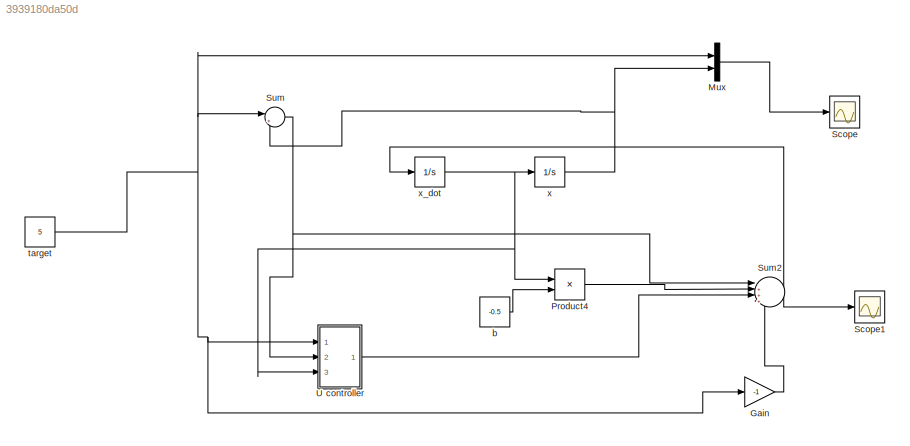
MODEL slx_3939180da50d
KIND model
CONFIG AbsTol = auto
CONFIG EnableMultiTasking = off
CONFIG FixedStep = auto
CONFIG MaxStep = auto
CONFIG MinStep = auto
CONFIG RelTol = 1e-3
CONFIG SampleTimeConstraint = Unconstrained
CONFIG Solver = VariableStepAuto
CONFIG SolverName = VariableStepAuto
CONFIG StartTime = 0.0
CONFIG StopTime = 100
BLOCK [Gain] Gain
  Gain = -1
  OutDataTypeStr = Inherit: Inherit via internal rule
  ParamDataTypeStr = Inherit: Inherit via internal rule
  SaturateOnIntegerOverflow = off
BLOCK [Mux] Mux
  DisplayOption = bar
  Inputs = 2
  Ports = [2, 1]
BLOCK [Product] Product4
  InputSameDT = off
  OutDataTypeStr = Inherit: Inherit via internal rule
  Ports = [2, 1]
  RndMeth = Floor
  SaturateOnIntegerOverflow = off
BLOCK [Scope] Scope
  Floating = off
  NumInputPorts = 1
  Ports = [1]
  ScopeSpecificationString = Simulink.scopes.TimeScopeBlockCfg('CurrentConfiguration', extmgr.ConfigurationSet(extmgr.Configuration('Core','General UI',true),extmgr.Configuration('Core','Source UI',true),extmgr.Configuration('Sources','WiredSimulink',true),extmgr.Configuration('Visuals','Time Domain',true,'SerializedDisplays',{struct('MinYLimReal','-0.89541','MaxYLimReal','8.05871','YLabelReal','','MinYLimMag','0.00000','MaxY...<+1355ch>
BLOCK [Scope] Scope1
  Floating = off
  NumInputPorts = 1
  Ports = [1]
  ScopeSpecificationString = Simulink.scopes.TimeScopeBlockCfg('CurrentConfiguration', extmgr.ConfigurationSet(extmgr.Configuration('Core','General UI',true),extmgr.Configuration('Core','Source UI',true),extmgr.Configuration('Sources','WiredSimulink',true,'DataLoggingVariableName','ScopeData1'),extmgr.Configuration('Visuals','Time Domain',true,'SerializedDisplays',{struct('MinYLimReal','-3.47149','MaxYLimReal','5.94128','YLab...<+1390ch>
BLOCK [Sum] Sum
  IconShape = round
  InputSameDT = off
  Inputs = |+-
  OutDataTypeStr = Inherit: Inherit via internal rule
  Ports = [2, 1]
  SaturateOnIntegerOverflow = off
BLOCK [Sum] Sum2
  IconShape = round
  InputSameDT = off
  Inputs = |++++
  OutDataTypeStr = Inherit: Inherit via internal rule
  Ports = [4, 1]
  SaturateOnIntegerOverflow = off
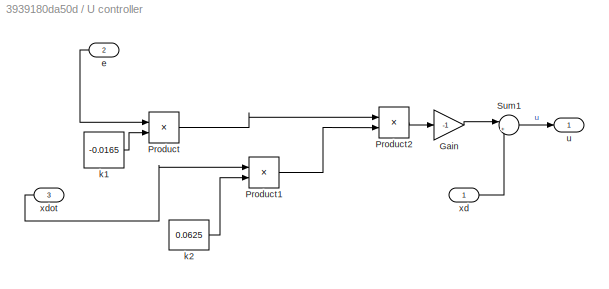
BLOCK [SubSystem] U controller
  Ports = [3, 1]
  RequestExecContextInheritance = off
BLOCK [Gain] U controller/Gain
  Gain = -1
  OutDataTypeStr = Inherit: Inherit via internal rule
  ParamDataTypeStr = Inherit: Inherit via internal rule
  SaturateOnIntegerOverflow = off
BLOCK [Product] U controller/Product
  InputSameDT = off
  OutDataTypeStr = Inherit: Inherit via internal rule
  Ports = [2, 1]
  RndMeth = Floor
  SaturateOnIntegerOverflow = off
BLOCK [Product] U controller/Product1
  InputSameDT = off
  OutDataTypeStr = Inherit: Inherit via internal rule
  Ports = [2, 1]
  RndMeth = Floor
  SaturateOnIntegerOverflow = off
BLOCK [Product] U controller/Product2
  InputSameDT = off
  OutDataTypeStr = Inherit: Inherit via internal rule
  Ports = [2, 1]
  RndMeth = Floor
  SaturateOnIntegerOverflow = off
BLOCK [Sum] U controller/Sum1
  IconShape = round
  InputSameDT = off
  Inputs = |++
  OutDataTypeStr = Inherit: Inherit via internal rule
  Ports = [2, 1]
  SaturateOnIntegerOverflow = off
BLOCK [Inport] U controller/e
  IconDisplay = Port number
  Port = 2
BLOCK [Constant] U controller/k1
  Value = -0.0165
BLOCK [Constant] U controller/k2
  Value = 0.0625
BLOCK [Outport] U controller/u
  IconDisplay = Port number
BLOCK [Inport] U controller/xd
  IconDisplay = Port number
BLOCK [Inport] U controller/xdot
  IconDisplay = Port number
  Port = 3
BLOCK [Constant] b
  Value = -0.5
BLOCK [Constant] target
  Value = 5
BLOCK [Integrator] x
  Ports = [1, 1]
BLOCK [Integrator] x_dot
  Ports = [1, 1]
LINE Gain:1 -> Sum2:4
LINE Mux:1 -> Scope:1
LINE Product4:1 -> Sum2:2
NET Sum2:1 -> Scope1:1, x_dot:1
NET Sum:1 -> Sum2:1, U controller:2
LINE U controller/Gain:1 -> U controller/Sum1:1
LINE U controller/Product1:1 -> U controller/Product2:2
LINE U controller/Product2:1 -> U controller/Gain:1
LINE U controller/Product:1 -> U controller/Product2:1
LINE U controller/Sum1:1 -> U controller/u:1
LINE U controller/e:1 -> U controller/Product:1
LINE U controller/k1:1 -> U controller/Product:2
LINE U controller/k2:1 -> U controller/Product1:2
LINE U controller/xd:1 -> U controller/Sum1:2
LINE U controller/xdot:1 -> U controller/Product1:1
LINE U controller:1 -> Sum2:3
LINE b:1 -> Product4:2
NET target:1 -> Gain:1, Mux:1, Sum:1, U controller:1
NET x:1 -> Mux:2, Sum:2
NET x_dot:1 -> Product4:1, U controller:3, x:1
note: NET lines group one-source signal fan-out (src -> all destinations, sorted); 1:1 wires keep LINE
